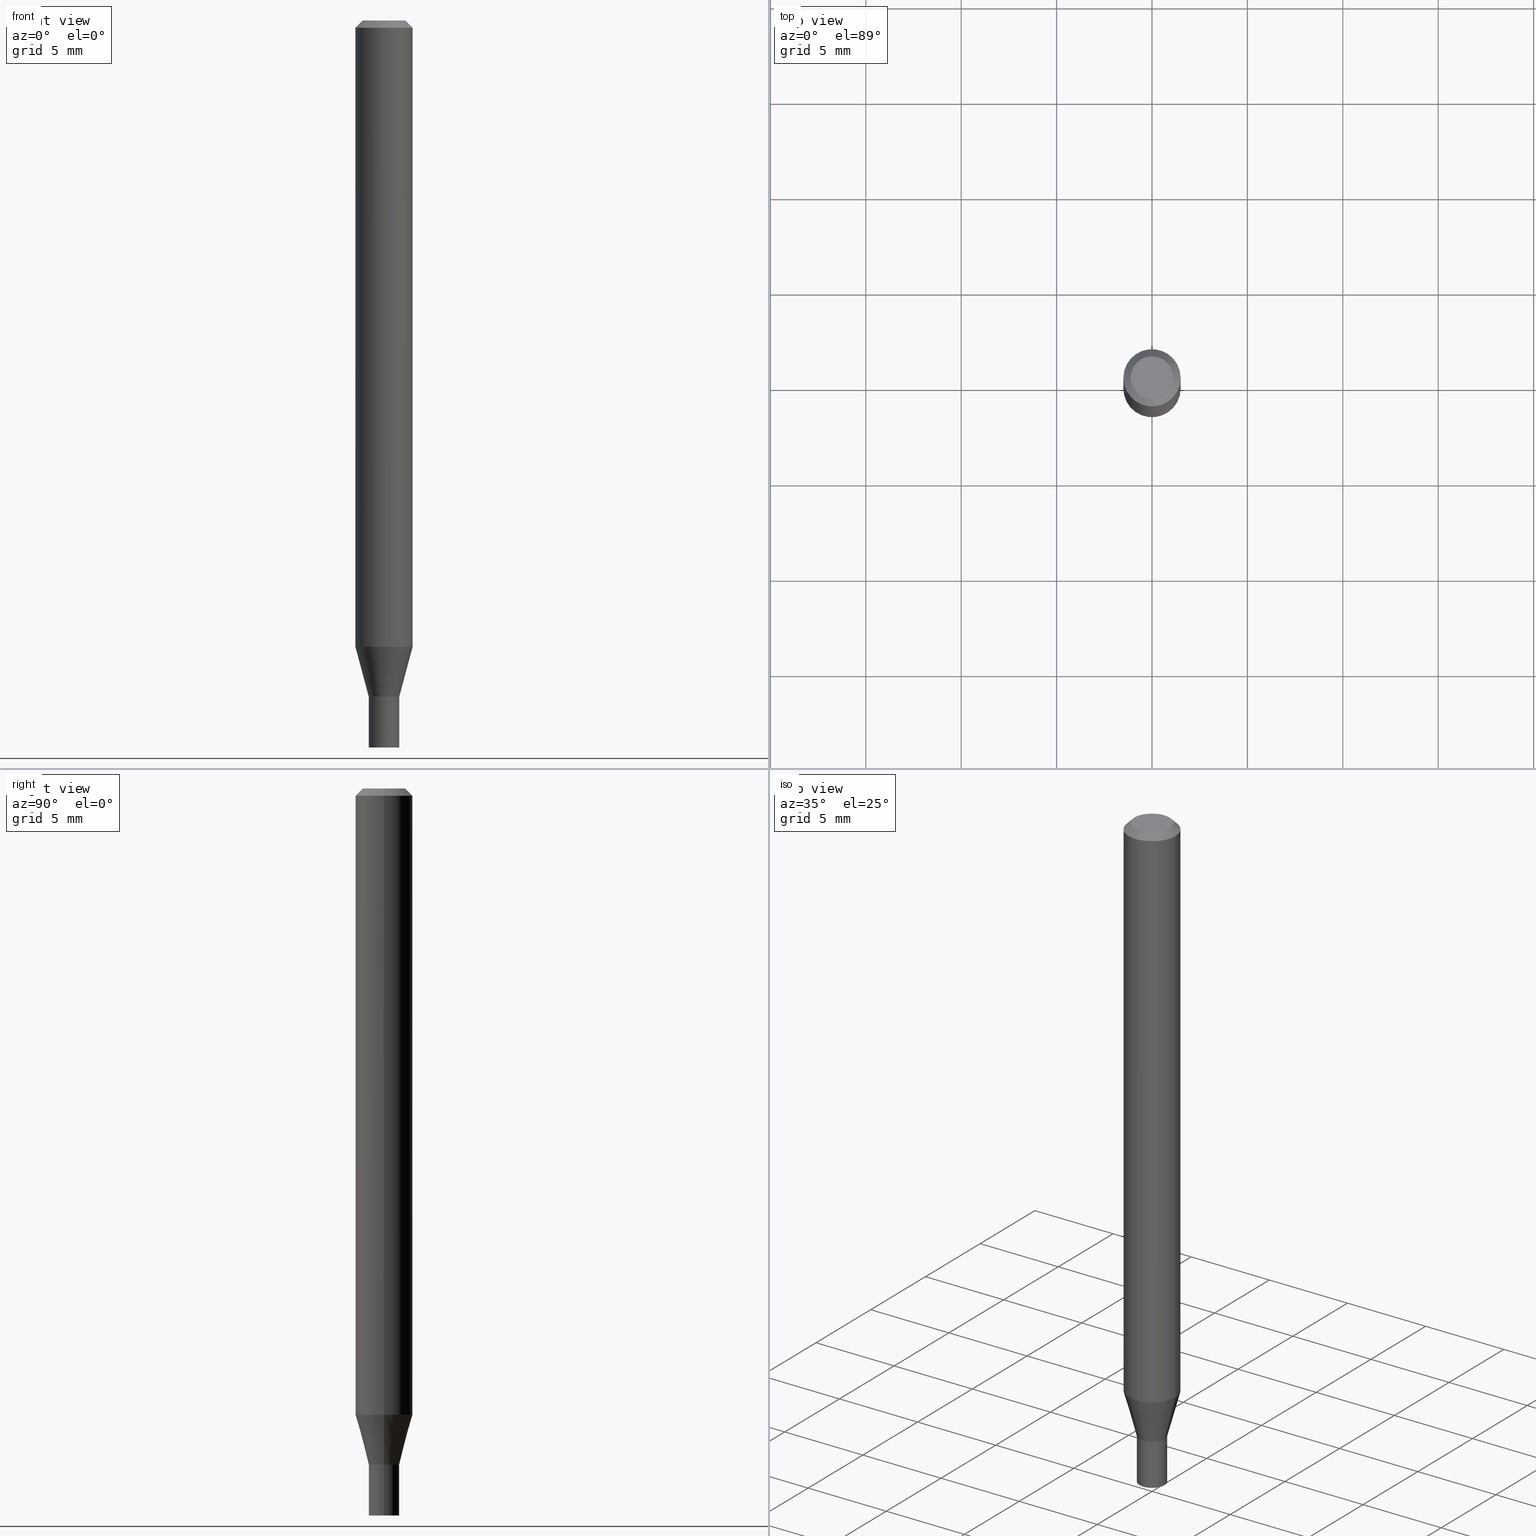
[diagram: canonical four-view strip — front | top / right | iso, engineering-drawing reading convention]
A machine part, canonical four-view strip (front | top / right | iso — engineering-drawing reading convention). The complete STEP part file that produces these views, byte-faithful:
ISO-10303-21;
HEADER;
FILE_DESCRIPTION (( 'STEP AP203' ),
    '1' );
FILE_NAME ('09286.STEP',
    '2024-03-14T18:20:42',
    ( '' ),
    ( '' ),
    'SwSTEP 2.0',
    'SolidWorks 2023',
    '' );
FILE_SCHEMA (( 'CONFIG_CONTROL_DESIGN' ));
ENDSEC;

DATA;
#1 = MANIFOLD_SOLID_BREP ( 'Body-Move/Copy2[1]', #327 ) ;
#2 = DIRECTION ( 'NONE',  ( -1.000000000000000000, 6.982962677686266711E-15, 0.000000000000000000 ) ) ;
#3 = CYLINDRICAL_SURFACE ( 'NONE', #389, 0.05904999999999999832 ) ;
#4 = CYLINDRICAL_SURFACE ( 'NONE', #10, 0.03149999999999992389 ) ;
#5 = DIRECTION ( 'NONE',  ( 1.000000000000000000, -6.982962677686265922E-15, 4.876176775795935793E-29 ) ) ;
#6 = APPLICATION_PROTOCOL_DEFINITION ( 'international standard', 'config_control_design', 1994, #75 ) ;
#7 = DIRECTION ( 'NONE',  ( 1.000000000000000000, -6.982962677686266711E-15, 4.876176775795935793E-29 ) ) ;
#8 = ORIENTED_EDGE ( 'NONE', *, *, #326, .F. ) ;
#9 = DATE_AND_TIME ( #25, #53 ) ;
#10 = AXIS2_PLACEMENT_3D ( 'NONE', #294, #289, #7 ) ;
#11 = PRODUCT_DEFINITION_FORMATION_WITH_SPECIFIED_SOURCE ( 'ANY', '', #279, .NOT_KNOWN. ) ;
#12 = DIRECTION ( 'NONE',  ( 1.000000000000000000, -6.982962677686270655E-15, 0.000000000000000000 ) ) ;
#13 = ORIENTED_EDGE ( 'NONE', *, *, #429, .F. ) ;
#14 = EDGE_CURVE ( 'NONE', #269, #48, #185, .T. ) ;
#15 = MECHANICAL_CONTEXT ( 'NONE', #75, 'mechanical' ) ;
#16 = ORIENTED_EDGE ( 'NONE', *, *, #464, .F. ) ;
#17 = CARTESIAN_POINT ( 'NONE',  ( 0.03150000000000000022, -2.199633243471173876E-16, 1.535995684375719887E-30 ) ) ;
#18 = ADVANCED_FACE ( 'NONE', ( #425 ), #144, .T. ) ;
#19 = ADVANCED_FACE ( 'NONE', ( #38 ), #291, .T. ) ;
#20 = DIRECTION ( 'NONE',  ( 1.000000000000000000, -6.982962677686271444E-15, 0.000000000000000000 ) ) ;
#21 = ORIENTED_EDGE ( 'NONE', *, *, #371, .F. ) ;
#22 = DIRECTION ( 'NONE',  ( 1.000000000000000000, -6.982962677686265922E-15, 4.876176775795935793E-29 ) ) ;
#23 = PERSON_AND_ORGANIZATION_ROLE ( 'creator' ) ;
#24 = VERTEX_POINT ( 'NONE', #461 ) ;
#25 = CALENDAR_DATE ( 2024, 14, 3 ) ;
#26 = CARTESIAN_POINT ( 'NONE',  ( 0.000000000000000000, 0.000000000000000000, 0.000000000000000000 ) ) ;
#27 = CARTESIAN_POINT ( 'NONE',  ( -0.05904999999999999832, -4.092053854800706123E-15, -1.292182000251478113 ) ) ;
#28 = DIRECTION ( 'NONE',  ( 1.000000000000000000, -6.982962677686255667E-15, 0.000000000000000000 ) ) ;
#29 = ORIENTED_EDGE ( 'NONE', *, *, #154, .T. ) ;
#30 = DIRECTION ( 'NONE',  ( 0.2588190451025205729, 1.565188264969628081E-15, 0.9659258262890684232 ) ) ;
#31 = PERSON_AND_ORGANIZATION ( #446, #445 ) ;
#32 = DIRECTION ( 'NONE',  ( -2.445468806185136597E-29, 3.491481338843145583E-15, 1.000000000000000000 ) ) ;
#33 = DIRECTION ( 'NONE',  ( 0.7071067811861793118, -2.468850131078399925E-15, 0.7071067811869157227 ) ) ;
#34 = AXIS2_PLACEMENT_3D ( 'NONE', #309, #171, #448 ) ;
#35 = AXIS2_PLACEMENT_3D ( 'NONE', #379, #207, #28 ) ;
#36 = DATE_AND_TIME ( #173, #397 ) ;
#37 = ORIENTED_EDGE ( 'NONE', *, *, #199, .F. ) ;
#38 = FACE_OUTER_BOUND ( 'NONE', #82, .T. ) ;
#39 = ADVANCED_FACE ( 'NONE', ( #139 ), #287, .F. ) ;
#40 = CIRCLE ( 'NONE', #197, 0.03150000000000000022 ) ;
#41 = CIRCLE ( 'NONE', #205, 0.05904999999999999832 ) ;
#42 = CARTESIAN_POINT ( 'NONE',  ( 3.668203209277704895E-29, -5.237222008264718177E-15, -1.500000000000000222 ) ) ;
#43 = CARTESIAN_POINT ( 'NONE',  ( 3.437106407093210258E-29, -4.907277021744042169E-15, -1.405500000000000416 ) ) ;
#44 = CC_DESIGN_APPROVAL ( #465, ( #11 ) ) ;
#45 = CARTESIAN_POINT ( 'NONE',  ( 0.000000000000000000, 0.000000000000000000, 0.000000000000000000 ) ) ;
#46 = ORIENTED_EDGE ( 'NONE', *, *, #235, .T. ) ;
#47 = DIRECTION ( 'NONE',  ( -2.445468806185136597E-29, 3.491481338843145583E-15, 1.000000000000000000 ) ) ;
#48 = VERTEX_POINT ( 'NONE', #284 ) ;
#49 = VERTEX_POINT ( 'NONE', #27 ) ;
#50 = EDGE_CURVE ( 'NONE', #24, #416, #168, .T. ) ;
#51 = APPROVAL_STATUS ( 'not_yet_approved' ) ;
#52 = AXIS2_PLACEMENT_3D ( 'NONE', #42, #113, #228 ) ;
#53 = LOCAL_TIME ( 14, 20, 42.00000000000000000, #436 ) ;
#54 = ORIENTED_EDGE ( 'NONE', *, *, #329, .F. ) ;
#55 = ORIENTED_EDGE ( 'NONE', *, *, #81, .F. ) ;
#56 = DATE_AND_TIME ( #303, #292 ) ;
#57 = CC_DESIGN_PERSON_AND_ORGANIZATION_ASSIGNMENT ( #459, #68, ( #11 ) ) ;
#58 = ORIENTED_EDGE ( 'NONE', *, *, #90, .T. ) ;
#59 = DIRECTION ( 'NONE',  ( -1.000000000000000000, 6.982962677686266711E-15, 0.000000000000000000 ) ) ;
#60 = DATE_TIME_ROLE ( 'creation_date' ) ;
#61 = AXIS2_PLACEMENT_3D ( 'NONE', #345, #94, #65 ) ;
#62 = CIRCLE ( 'NONE', #306, 0.03150000000000020145 ) ;
#63 = DIRECTION ( 'NONE',  ( 1.000000000000000000, -6.982962677686272233E-15, 0.000000000000000000 ) ) ;
#64 = DIRECTION ( 'NONE',  ( 1.000000000000000000, -6.982962677686272233E-15, 0.000000000000000000 ) ) ;
#65 = DIRECTION ( 'NONE',  ( -1.000000000000000000, 6.982962677686265922E-15, -4.876176775795935793E-29 ) ) ;
#66 = PRODUCT_DEFINITION ( 'UNKNOWN', '', #11, #196 ) ;
#67 = SECURITY_CLASSIFICATION_LEVEL ( 'unclassified' ) ;
#68 = PERSON_AND_ORGANIZATION_ROLE ( 'creator' ) ;
#69 = VECTOR ( 'NONE', #187, 39.37007874015748143 ) ;
#70 = EDGE_LOOP ( 'NONE', ( #413, #126 ) ) ;
#71 = CARTESIAN_POINT ( 'NONE',  ( -0.04404999999999999888, 3.337856159934039069E-16, 2.531384086379445251E-16 ) ) ;
#72 = VECTOR ( 'NONE', #74, 39.37007874015748143 ) ;
#73 = DIRECTION ( 'NONE',  ( -0.2588190451025205729, 5.211531920934545520E-15, 0.9659258262890684232 ) ) ;
#74 = DIRECTION ( 'NONE',  ( -0.7071067811861793118, 7.493145998869024141E-15, 0.7071067811869157227 ) ) ;
#75 = APPLICATION_CONTEXT ( 'configuration controlled 3d designs of mechanical parts and assemblies' ) ;
#76 = CARTESIAN_POINT ( 'NONE',  ( -0.03150000000000020145, -4.646795505921755287E-15, -1.395000000000000018 ) ) ;
#77 = AXIS2_PLACEMENT_3D ( 'NONE', #209, #180, #422 ) ;
#78 = VECTOR ( 'NONE', #273, 39.37007874015748143 ) ;
#79 = VERTEX_POINT ( 'NONE', #280 ) ;
#80 = ADVANCED_FACE ( 'NONE', ( #453 ), #129, .T. ) ;
#81 = EDGE_CURVE ( 'NONE', #351, #200, #300, .T. ) ;
#82 = EDGE_LOOP ( 'NONE', ( #162, #403, #237, #315 ) ) ;
#83 = APPROVAL_ROLE ( '' ) ;
#84 = CARTESIAN_POINT ( 'NONE',  ( -6.190420819714450177E-45, 8.838280299038417497E-31, 2.531384086379467931E-16 ) ) ;
#85 = ORIENTED_EDGE ( 'NONE', *, *, #254, .F. ) ;
#86 = CARTESIAN_POINT ( 'NONE',  ( 3.668203209277705088E-31, -5.237222008264718399E-17, -0.01499999999999999944 ) ) ;
#87 = VECTOR ( 'NONE', #463, 39.37007874015748143 ) ;
#88 = APPROVAL_PERSON_ORGANIZATION ( #233, #391, #83 ) ;
#89 = VERTEX_POINT ( 'NONE', #210 ) ;
#90 = EDGE_CURVE ( 'NONE', #118, #435, #110, .T. ) ;
#91 = COORDINATED_UNIVERSAL_TIME_OFFSET ( 5, 0, .BEHIND. ) ;
#92 = EDGE_LOOP ( 'NONE', ( #311, #122 ) ) ;
#93 = FACE_OUTER_BOUND ( 'NONE', #219, .T. ) ;
#94 = DIRECTION ( 'NONE',  ( 2.438088387897960049E-29, -3.491481338843145188E-15, -1.000000000000000000 ) ) ;
#95 = CARTESIAN_POINT ( 'NONE',  ( -0.05904999999999999832, 3.599717260347268549E-16, -0.01499999999999999944 ) ) ;
#96 = AXIS2_PLACEMENT_3D ( 'NONE', #188, #362, #5 ) ;
#97 = VECTOR ( 'NONE', #388, 39.37007874015748143 ) ;
#98 = EDGE_LOOP ( 'NONE', ( #125, #375, #347, #55 ) ) ;
#99 = DIRECTION ( 'NONE',  ( 2.445468806185136597E-29, -3.491481338843145583E-15, -1.000000000000000000 ) ) ;
#100 = DATE_TIME_ROLE ( 'classification_date' ) ;
#101 =( LENGTH_UNIT ( ) NAMED_UNIT ( * ) SI_UNIT ( $, .METRE. ) );
#102 = LINE ( 'NONE', #177, #230 ) ;
#103 = ORIENTED_EDGE ( 'NONE', *, *, #14, .F. ) ;
#104 = AXIS2_PLACEMENT_3D ( 'NONE', #84, #236, #449 ) ;
#105 = CC_DESIGN_PERSON_AND_ORGANIZATION_ASSIGNMENT ( #350, #130, ( #231 ) ) ;
#106 = ADVANCED_FACE ( 'NONE', ( #352 ), #267, .T. ) ;
#107 = DIRECTION ( 'NONE',  ( 1.000000000000000000, -6.982962677686272233E-15, 0.000000000000000000 ) ) ;
#108 = DIRECTION ( 'NONE',  ( 1.000000000000000000, -6.982962677686255667E-15, 0.000000000000000000 ) ) ;
#109 = CARTESIAN_POINT ( 'NONE',  ( -0.03150000000000000022, -4.848428553239948021E-15, -1.405499999999999972 ) ) ;
#110 = CIRCLE ( 'NONE', #353, 0.03149999999999965328 ) ;
#111 = CIRCLE ( 'NONE', #145, 0.03099999999999999978 ) ;
#112 = EDGE_CURVE ( 'NONE', #49, #79, #134, .T. ) ;
#113 = DIRECTION ( 'NONE',  ( -2.445468806185136597E-29, 3.491481338843145583E-15, 1.000000000000000000 ) ) ;
#114 = DIRECTION ( 'NONE',  ( -2.445468806185136597E-29, 3.491481338843145583E-15, 1.000000000000000000 ) ) ;
#115 = CLOSED_SHELL ( 'NONE', ( #396, #260, #149, #364, #433, #19, #80, #106, #121, #296, #18, #243 ) ) ;
#116 =( GEOMETRIC_REPRESENTATION_CONTEXT ( 3 ) GLOBAL_UNCERTAINTY_ASSIGNED_CONTEXT ( ( #159 ) ) GLOBAL_UNIT_ASSIGNED_CONTEXT ( ( #320, #137, #264 ) ) REPRESENTATION_CONTEXT ( 'NONE', 'WORKASPACE' ) );
#117 = CARTESIAN_POINT ( 'NONE',  ( 0.03150000000000020145, -5.090579792033307144E-15, -1.395000000000000018 ) ) ;
#118 = VERTEX_POINT ( 'NONE', #361 ) ;
#119 = DIRECTION ( 'NONE',  ( 1.000000000000000000, -6.982962677686266711E-15, 4.876176775795935793E-29 ) ) ;
#120 = ORIENTED_EDGE ( 'NONE', *, *, #179, .F. ) ;
#121 = ADVANCED_FACE ( 'NONE', ( #426 ), #386, .F. ) ;
#122 = ORIENTED_EDGE ( 'NONE', *, *, #199, .T. ) ;
#123 = CARTESIAN_POINT ( 'NONE',  ( 3.159990773528904533E-29, -4.511629340267044828E-15, -1.292182000251478113 ) ) ;
#124 = AXIS2_PLACEMENT_3D ( 'NONE', #43, #148, #431 ) ;
#125 = ORIENTED_EDGE ( 'NONE', *, *, #390, .T. ) ;
#126 = ORIENTED_EDGE ( 'NONE', *, *, #154, .F. ) ;
#127 = DIRECTION ( 'NONE',  ( -1.000000000000000000, 6.982962677686265922E-15, -4.876176775795935793E-29 ) ) ;
#128 = DIRECTION ( 'NONE',  ( -2.445468806185136597E-29, 3.491481338843145583E-15, 1.000000000000000000 ) ) ;
#129 = CYLINDRICAL_SURFACE ( 'NONE', #138, 0.05904999999999999832 ) ;
#130 = PERSON_AND_ORGANIZATION_ROLE ( 'classification_officer' ) ;
#131 = CONICAL_SURFACE ( 'NONE', #124, 0.03099999999999999978, 0.7853981633969275844 ) ;
#132 = DIRECTION ( 'NONE',  ( -2.445468806185136597E-29, 3.491481338843145583E-15, 1.000000000000000000 ) ) ;
#133 = DIRECTION ( 'NONE',  ( -2.445468806185136597E-29, 3.491481338843145583E-15, 1.000000000000000000 ) ) ;
#134 = LINE ( 'NONE', #451, #69 ) ;
#135 = LINE ( 'NONE', #182, #405 ) ;
#136 = PERSON_AND_ORGANIZATION ( #446, #445 ) ;
#137 =( NAMED_UNIT ( * ) PLANE_ANGLE_UNIT ( ) SI_UNIT ( $, .RADIAN. ) );
#138 = AXIS2_PLACEMENT_3D ( 'NONE', #383, #252, #213 ) ;
#139 = FACE_OUTER_BOUND ( 'NONE', #92, .T. ) ;
#140 = CONICAL_SURFACE ( 'NONE', #299, 0.03150000000000020145, 0.2617993877991492413 ) ;
#141 = CARTESIAN_POINT ( 'NONE',  ( 3.437106407093210258E-29, -4.907277021744041380E-15, -1.405499999999999972 ) ) ;
#142 = FACE_OUTER_BOUND ( 'NONE', #157, .T. ) ;
#143 = FACE_OUTER_BOUND ( 'NONE', #270, .T. ) ;
#144 = CONICAL_SURFACE ( 'NONE', #365, 0.03099999999999999978, 0.7853981633969275844 ) ;
#145 = AXIS2_PLACEMENT_3D ( 'NONE', #161, #344, #12 ) ;
#146 = PLANE ( 'NONE',  #96 ) ;
#147 = CC_DESIGN_PERSON_AND_ORGANIZATION_ASSIGNMENT ( #242, #339, ( #279 ) ) ;
#148 = DIRECTION ( 'NONE',  ( -2.445468806185136597E-29, 3.491481338843145583E-15, 1.000000000000000000 ) ) ;
#149 = ADVANCED_FACE ( 'NONE', ( #93 ), #434, .T. ) ;
#150 = ORIENTED_EDGE ( 'NONE', *, *, #254, .T. ) ;
#151 = EDGE_CURVE ( 'NONE', #167, #79, #214, .T. ) ;
#152 = EDGE_LOOP ( 'NONE', ( #376, #195 ) ) ;
#153 = PERSON_AND_ORGANIZATION ( #446, #445 ) ;
#154 = EDGE_CURVE ( 'NONE', #89, #155, #40, .T. ) ;
#155 = VERTEX_POINT ( 'NONE', #423 ) ;
#156 = MANIFOLD_SOLID_BREP ( 'Body-Move/Copy2[2]', #115 ) ;
#157 = EDGE_LOOP ( 'NONE', ( #13, #58, #336, #286 ) ) ;
#158 = DIRECTION ( 'NONE',  ( -2.445468806185136597E-29, 3.491481338843145583E-15, 1.000000000000000000 ) ) ;
#159 = UNCERTAINTY_MEASURE_WITH_UNIT (LENGTH_MEASURE( 1.000000000000000082E-05 ), #320, 'distance_accuracy_value', 'NONE');
#160 = APPROVAL_STATUS ( 'not_yet_approved' ) ;
#161 = CARTESIAN_POINT ( 'NONE',  ( 3.437106407093210258E-29, -4.907277021744042169E-15, -1.405500000000000416 ) ) ;
#162 = ORIENTED_EDGE ( 'NONE', *, *, #263, .F. ) ;
#163 = AXIS2_PLACEMENT_3D ( 'NONE', #321, #244, #63 ) ;
#164 = CARTESIAN_POINT ( 'NONE',  ( 0.000000000000000000, 0.000000000000000000, 0.000000000000000000 ) ) ;
#165 = APPROVAL_PERSON_ORGANIZATION ( #31, #410, #258 ) ;
#166 = DIRECTION ( 'NONE',  ( -2.445468806185136597E-29, 3.491481338843145583E-15, 1.000000000000000000 ) ) ;
#167 = VERTEX_POINT ( 'NONE', #71 ) ;
#168 = LINE ( 'NONE', #456, #204 ) ;
#169 = DIRECTION ( 'NONE',  ( 1.000000000000000000, -6.982962677686271444E-15, 0.000000000000000000 ) ) ;
#170 = ORIENTED_EDGE ( 'NONE', *, *, #14, .T. ) ;
#171 = DIRECTION ( 'NONE',  ( -2.445468806185136597E-29, 3.491481338843145583E-15, 1.000000000000000000 ) ) ;
#172 = CARTESIAN_POINT ( 'NONE',  ( 3.668203209277705088E-31, -5.237222008264718399E-17, -0.01499999999999999944 ) ) ;
#173 = CALENDAR_DATE ( 2024, 14, 3 ) ;
#174 = AXIS2_PLACEMENT_3D ( 'NONE', #191, #331, #22 ) ;
#175 = CARTESIAN_POINT ( 'NONE',  ( -0.03149999999999992389, 2.238209617644310178E-16, -1.549464553430291473E-30 ) ) ;
#176 = AXIS2_PLACEMENT_3D ( 'NONE', #229, #47, #193 ) ;
#177 = CARTESIAN_POINT ( 'NONE',  ( 0.03099999999999999978, -5.123748864752316500E-15, -1.405500000000000416 ) ) ;
#178 = PERSON_AND_ORGANIZATION_ROLE ( 'design_supplier' ) ;
#179 = EDGE_CURVE ( 'NONE', #48, #435, #102, .T. ) ;
#180 = DIRECTION ( 'NONE',  ( -2.445468806185136597E-29, 3.491481338843145583E-15, 1.000000000000000000 ) ) ;
#181 = ADVANCED_BREP_SHAPE_REPRESENTATION ( '09286', ( #1, #156, #381 ), #116 ) ;
#182 = CARTESIAN_POINT ( 'NONE',  ( 0.05904999999999999832, -4.123439461173740327E-16, 2.879382386107500220E-30 ) ) ;
#183 = ORIENTED_EDGE ( 'NONE', *, *, #390, .F. ) ;
#184 = DIRECTION ( 'NONE',  ( 1.000000000000000000, -6.982962677686265922E-15, 4.888540261209747396E-29 ) ) ;
#185 = CIRCLE ( 'NONE', #77, 0.03099999999999999978 ) ;
#186 = AXIS2_PLACEMENT_3D ( 'NONE', #201, #439, #20 ) ;
#187 = DIRECTION ( 'NONE',  ( -2.445468806185136877E-29, 3.491481338843145188E-15, 1.000000000000000000 ) ) ;
#188 = CARTESIAN_POINT ( 'NONE',  ( 3.576687321579069994E-29, -5.368277968210015545E-15, -1.500000000000000222 ) ) ;
#189 = CYLINDRICAL_SURFACE ( 'NONE', #224, 0.03150000000000000022 ) ;
#190 = CIRCLE ( 'NONE', #35, 0.03150000000000000022 ) ;
#191 = CARTESIAN_POINT ( 'NONE',  ( 3.437106407093210258E-29, -4.907277021744041380E-15, -1.405499999999999972 ) ) ;
#192 = EDGE_CURVE ( 'NONE', #89, #234, #223, .T. ) ;
#193 = DIRECTION ( 'NONE',  ( 1.000000000000000000, -6.982962677686266711E-15, 0.000000000000000000 ) ) ;
#194 = ORIENTED_EDGE ( 'NONE', *, *, #192, .T. ) ;
#195 = ORIENTED_EDGE ( 'NONE', *, *, #411, .T. ) ;
#196 = DESIGN_CONTEXT ( 'detailed design', #332, 'design' ) ;
#197 = AXIS2_PLACEMENT_3D ( 'NONE', #313, #285, #108 ) ;
#198 = APPROVAL_PERSON_ORGANIZATION ( #153, #465, #211 ) ;
#199 = EDGE_CURVE ( 'NONE', #234, #305, #297, .T. ) ;
#200 = VERTEX_POINT ( 'NONE', #265 ) ;
#201 = CARTESIAN_POINT ( 'NONE',  ( 3.435883672690117457E-29, -4.905531281074619877E-15, -1.405000000000000249 ) ) ;
#202 = ORIENTED_EDGE ( 'NONE', *, *, #384, .T. ) ;
#203 = ORIENTED_EDGE ( 'NONE', *, *, #314, .T. ) ;
#204 = VECTOR ( 'NONE', #249, 39.37007874015748143 ) ;
#205 = AXIS2_PLACEMENT_3D ( 'NONE', #86, #158, #312 ) ;
#206 = ORIENTED_EDGE ( 'NONE', *, *, #112, .F. ) ;
#207 = DIRECTION ( 'NONE',  ( -2.445468806185136597E-29, 3.491481338843145583E-15, 1.000000000000000000 ) ) ;
#208 = PRODUCT_DEFINITION_SHAPE ( 'NONE', 'NONE',  #66 ) ;
#209 = CARTESIAN_POINT ( 'NONE',  ( 3.437106407093210258E-29, -4.907277021744042169E-15, -1.405500000000000416 ) ) ;
#210 = CARTESIAN_POINT ( 'NONE',  ( -0.03150000000000000022, -4.848428553239948021E-15, -1.500000000000000222 ) ) ;
#211 = APPROVAL_ROLE ( '' ) ;
#212 = LINE ( 'NONE', #175, #283 ) ;
#213 = DIRECTION ( 'NONE',  ( 1.000000000000000000, -6.982962677686266711E-15, 4.876176775795936353E-29 ) ) ;
#214 = LINE ( 'NONE', #95, #247 ) ;
#215 = SHAPE_DEFINITION_REPRESENTATION ( #208, #181 ) ;
#216 = ADVANCED_FACE ( 'NONE', ( #290 ), #146, .F. ) ;
#217 = CIRCLE ( 'NONE', #318, 0.05904999999999999832 ) ;
#218 = CIRCLE ( 'NONE', #367, 0.03150000000000020145 ) ;
#219 = EDGE_LOOP ( 'NONE', ( #308, #343, #222, #241 ) ) ;
#220 = CALENDAR_DATE ( 2024, 14, 3 ) ;
#221 = CARTESIAN_POINT ( 'NONE',  ( 3.411428984628265351E-29, -4.870616467686188228E-15, -1.395000000000000018 ) ) ;
#222 = ORIENTED_EDGE ( 'NONE', *, *, #359, .T. ) ;
#223 = LINE ( 'NONE', #323, #87 ) ;
#224 = AXIS2_PLACEMENT_3D ( 'NONE', #45, #114, #401 ) ;
#225 = LOCAL_TIME ( 14, 20, 42.00000000000000000, #387 ) ;
#226 = CYLINDRICAL_SURFACE ( 'NONE', #412, 0.03150000000000000022 ) ;
#227 = FACE_OUTER_BOUND ( 'NONE', #447, .T. ) ;
#228 = DIRECTION ( 'NONE',  ( 1.000000000000000000, -6.982962677686255667E-15, 0.000000000000000000 ) ) ;
#229 = CARTESIAN_POINT ( 'NONE',  ( 3.668203209277705088E-31, -5.237222008264718399E-17, -0.01499999999999999944 ) ) ;
#230 = VECTOR ( 'NONE', #33, 39.37007874015748143 ) ;
#231 = SECURITY_CLASSIFICATION ( '', '', #67 ) ;
#232 = ORIENTED_EDGE ( 'NONE', *, *, #112, .T. ) ;
#233 = PERSON_AND_ORGANIZATION ( #446, #445 ) ;
#234 = VERTEX_POINT ( 'NONE', #109 ) ;
#235 = EDGE_CURVE ( 'NONE', #155, #89, #360, .T. ) ;
#236 = DIRECTION ( 'NONE',  ( -2.445468806185136597E-29, 3.491481338843145583E-15, 1.000000000000000000 ) ) ;
#237 = ORIENTED_EDGE ( 'NONE', *, *, #81, .T. ) ;
#238 = CC_DESIGN_PERSON_AND_ORGANIZATION_ASSIGNMENT ( #370, #23, ( #66 ) ) ;
#239 = APPLICATION_PROTOCOL_DEFINITION ( 'international standard', 'config_control_design', 1994, #332 ) ;
#240 = EDGE_LOOP ( 'NONE', ( #409, #407, #298, #369 ) ) ;
#241 = ORIENTED_EDGE ( 'NONE', *, *, #151, .F. ) ;
#242 = PERSON_AND_ORGANIZATION ( #446, #445 ) ;
#243 = ADVANCED_FACE ( 'NONE', ( #142 ), #4, .T. ) ;
#244 = DIRECTION ( 'NONE',  ( -2.445468806185136597E-29, 3.491481338843145583E-15, 1.000000000000000000 ) ) ;
#245 = DIRECTION ( 'NONE',  ( -0.7071067811865415775, 2.468850131082194741E-15, -0.7071067811865534569 ) ) ;
#246 = ADVANCED_FACE ( 'NONE', ( #143 ), #189, .T. ) ;
#247 = VECTOR ( 'NONE', #245, 39.37007874015748143 ) ;
#248 = CIRCLE ( 'NONE', #176, 0.05904999999999999832 ) ;
#249 = DIRECTION ( 'NONE',  ( 0.7071067811865415775, -7.319954787623235535E-15, -0.7071067811865534569 ) ) ;
#250 = DIRECTION ( 'NONE',  ( -2.445468806185136597E-29, 3.491481338843145583E-15, 1.000000000000000000 ) ) ;
#251 = CARTESIAN_POINT ( 'NONE',  ( 0.05904999999999999832, -4.647161662000212105E-16, -0.01499999999999999944 ) ) ;
#252 = DIRECTION ( 'NONE',  ( -2.445468806185136597E-29, 3.491481338843145583E-15, 1.000000000000000000 ) ) ;
#253 = CARTESIAN_POINT ( 'NONE',  ( 0.03149999999999992389, -2.199633243471168699E-16, 1.535995684375716033E-30 ) ) ;
#254 = EDGE_CURVE ( 'NONE', #269, #118, #427, .T. ) ;
#255 = DATE_AND_TIME ( #385, #225 ) ;
#256 = CIRCLE ( 'NONE', #462, 0.04404999999999999888 ) ;
#257 = CARTESIAN_POINT ( 'NONE',  ( 3.411428984628265351E-29, -4.870616467686188228E-15, -1.395000000000000018 ) ) ;
#258 = APPROVAL_ROLE ( '' ) ;
#259 = LINE ( 'NONE', #253, #97 ) ;
#260 = ADVANCED_FACE ( 'NONE', ( #398 ), #131, .T. ) ;
#261 = CARTESIAN_POINT ( 'NONE',  ( -0.03099999999999999978, -4.687008773658410916E-15, -1.405500000000000416 ) ) ;
#262 = CC_DESIGN_SECURITY_CLASSIFICATION ( #231, ( #11 ) ) ;
#263 = EDGE_CURVE ( 'NONE', #340, #49, #325, .T. ) ;
#264 =( NAMED_UNIT ( * ) SI_UNIT ( $, .STERADIAN. ) SOLID_ANGLE_UNIT ( ) );
#265 = CARTESIAN_POINT ( 'NONE',  ( 0.05904999999999999832, -4.923973286384418959E-15, -1.292182000251478113 ) ) ;
#266 = FACE_OUTER_BOUND ( 'NONE', #295, .T. ) ;
#267 = CONICAL_SURFACE ( 'NONE', #444, 0.05904999999999999832, 0.7853981633974399523 ) ;
#268 = AXIS2_PLACEMENT_3D ( 'NONE', #26, #166, #119 ) ;
#269 = VERTEX_POINT ( 'NONE', #400 ) ;
#270 = EDGE_LOOP ( 'NONE', ( #358, #29, #301, #37 ) ) ;
#271 = DIRECTION ( 'NONE',  ( 1.000000000000000000, -6.982962677686273021E-15, 0.000000000000000000 ) ) ;
#272 = ORIENTED_EDGE ( 'NONE', *, *, #384, .F. ) ;
#273 = DIRECTION ( 'NONE',  ( -2.445468806185136877E-29, 3.491481338843145188E-15, 1.000000000000000000 ) ) ;
#274 = DIRECTION ( 'NONE',  ( 1.000000000000000000, -6.982962677686272233E-15, 0.000000000000000000 ) ) ;
#275 = ORIENTED_EDGE ( 'NONE', *, *, #442, .T. ) ;
#276 = DIRECTION ( 'NONE',  ( -2.445468806185136597E-29, 3.491481338843145583E-15, 1.000000000000000000 ) ) ;
#277 = ORIENTED_EDGE ( 'NONE', *, *, #322, .F. ) ;
#278 = ADVANCED_FACE ( 'NONE', ( #227 ), #226, .T. ) ;
#279 = PRODUCT ( '09286', '09286', '', ( #15 ) ) ;
#280 = CARTESIAN_POINT ( 'NONE',  ( -0.05904999999999999832, -1.862425294708507052E-15, -0.01499999999999999944 ) ) ;
#281 = CARTESIAN_POINT ( 'NONE',  ( 3.435883672690117457E-29, -4.905531281074619877E-15, -1.405000000000000249 ) ) ;
#282 = DATE_AND_TIME ( #220, #355 ) ;
#283 = VECTOR ( 'NONE', #394, 39.37007874015748143 ) ;
#284 = CARTESIAN_POINT ( 'NONE',  ( 0.03099999999999999978, -5.123748864752316500E-15, -1.405500000000000416 ) ) ;
#285 = DIRECTION ( 'NONE',  ( -2.445468806185136597E-29, 3.491481338843145583E-15, 1.000000000000000000 ) ) ;
#286 = ORIENTED_EDGE ( 'NONE', *, *, #466, .F. ) ;
#287 = PLANE ( 'NONE',  #61 ) ;
#288 = DIRECTION ( 'NONE',  ( 1.000000000000000000, -6.982962677686255667E-15, 0.000000000000000000 ) ) ;
#289 = DIRECTION ( 'NONE',  ( -2.445468806185136597E-29, 3.491481338843145583E-15, 1.000000000000000000 ) ) ;
#290 = FACE_OUTER_BOUND ( 'NONE', #70, .T. ) ;
#291 = CONICAL_SURFACE ( 'NONE', #163, 0.03150000000000020145, 0.2617993877991492413 ) ;
#292 = LOCAL_TIME ( 14, 20, 42.00000000000000000, #91 ) ;
#293 = PRODUCT_RELATED_PRODUCT_CATEGORY ( 'detail', '', ( #279 ) ) ;
#294 = CARTESIAN_POINT ( 'NONE',  ( 0.000000000000000000, 0.000000000000000000, 0.000000000000000000 ) ) ;
#295 = EDGE_LOOP ( 'NONE', ( #272, #103 ) ) ;
#296 = ADVANCED_FACE ( 'NONE', ( #266 ), #366, .F. ) ;
#297 = CIRCLE ( 'NONE', #419, 0.03150000000000000022 ) ;
#298 = ORIENTED_EDGE ( 'NONE', *, *, #151, .T. ) ;
#299 = AXIS2_PLACEMENT_3D ( 'NONE', #257, #32, #107 ) ;
#300 = LINE ( 'NONE', #346, #457 ) ;
#301 = ORIENTED_EDGE ( 'NONE', *, *, #329, .T. ) ;
#302 = EDGE_LOOP ( 'NONE', ( #356, #378, #183, #16 ) ) ;
#303 = CALENDAR_DATE ( 2024, 14, 3 ) ;
#304 = DIRECTION ( 'NONE',  ( -2.445468806185136597E-29, 3.491481338843145583E-15, 1.000000000000000000 ) ) ;
#305 = VERTEX_POINT ( 'NONE', #377 ) ;
#306 = AXIS2_PLACEMENT_3D ( 'NONE', #221, #132, #64 ) ;
#307 = DIRECTION ( 'NONE',  ( -2.445468806185136597E-29, 3.491481338843145583E-15, 1.000000000000000000 ) ) ;
#308 = ORIENTED_EDGE ( 'NONE', *, *, #411, .F. ) ;
#309 = CARTESIAN_POINT ( 'NONE',  ( 3.159990773528904533E-29, -4.511629340267044828E-15, -1.292182000251478113 ) ) ;
#310 = FACE_OUTER_BOUND ( 'NONE', #302, .T. ) ;
#311 = ORIENTED_EDGE ( 'NONE', *, *, #322, .T. ) ;
#312 = DIRECTION ( 'NONE',  ( 1.000000000000000000, -6.982962677686266711E-15, 0.000000000000000000 ) ) ;
#313 = CARTESIAN_POINT ( 'NONE',  ( 3.668203209277704895E-29, -5.237222008264718177E-15, -1.500000000000000222 ) ) ;
#314 = EDGE_CURVE ( 'NONE', #200, #49, #430, .T. ) ;
#315 = ORIENTED_EDGE ( 'NONE', *, *, #317, .F. ) ;
#316 = DIRECTION ( 'NONE',  ( 2.445468806185136597E-29, -3.491481338843145583E-15, -1.000000000000000000 ) ) ;
#317 = EDGE_CURVE ( 'NONE', #49, #200, #217, .T. ) ;
#318 = AXIS2_PLACEMENT_3D ( 'NONE', #123, #348, #271 ) ;
#319 = COORDINATED_UNIVERSAL_TIME_OFFSET ( 5, 0, .BEHIND. ) ;
#320 =( CONVERSION_BASED_UNIT ( 'INCH', #357 ) LENGTH_UNIT ( ) NAMED_UNIT ( #402 ) );
#321 = CARTESIAN_POINT ( 'NONE',  ( 3.411428984628265351E-29, -4.870616467686188228E-15, -1.395000000000000018 ) ) ;
#322 = EDGE_CURVE ( 'NONE', #305, #234, #190, .T. ) ;
#323 = CARTESIAN_POINT ( 'NONE',  ( -0.03150000000000000022, 2.238209617644315601E-16, -1.549464553430295327E-30 ) ) ;
#324 = CARTESIAN_POINT ( 'NONE',  ( 3.075995059520799729E-16, 0.04404999999999999888, -2.723054865706716614E-17 ) ) ;
#325 = LINE ( 'NONE', #76, #395 ) ;
#326 = EDGE_CURVE ( 'NONE', #79, #416, #41, .T. ) ;
#327 = CLOSED_SHELL ( 'NONE', ( #278, #216, #246, #39 ) ) ;
#328 = DIRECTION ( 'NONE',  ( -2.445468806185136597E-29, 3.491481338843145583E-15, 1.000000000000000000 ) ) ;
#329 = EDGE_CURVE ( 'NONE', #155, #305, #454, .T. ) ;
#330 = AXIS2_PLACEMENT_3D ( 'NONE', #349, #316, #2 ) ;
#331 = DIRECTION ( 'NONE',  ( -2.438088387897960049E-29, 3.491481338843145188E-15, 1.000000000000000000 ) ) ;
#332 = APPLICATION_CONTEXT ( 'configuration controlled 3d designs of mechanical parts and assemblies' ) ;
#333 = FACE_OUTER_BOUND ( 'NONE', #334, .T. ) ;
#334 = EDGE_LOOP ( 'NONE', ( #203, #232, #372, #338 ) ) ;
#335 = DIRECTION ( 'NONE',  ( 1.000000000000000000, -6.982962677686266711E-15, 4.876176775795936353E-29 ) ) ;
#336 = ORIENTED_EDGE ( 'NONE', *, *, #464, .T. ) ;
#337 = CIRCLE ( 'NONE', #186, 0.03149999999999965328 ) ;
#338 = ORIENTED_EDGE ( 'NONE', *, *, #442, .F. ) ;
#339 = PERSON_AND_ORGANIZATION_ROLE ( 'design_owner' ) ;
#340 = VERTEX_POINT ( 'NONE', #414 ) ;
#341 = APPROVAL_DATE_TIME ( #56, #391 ) ;
#342 = CARTESIAN_POINT ( 'NONE',  ( 3.411428984628265351E-29, -4.870616467686188228E-15, -1.395000000000000018 ) ) ;
#343 = ORIENTED_EDGE ( 'NONE', *, *, #50, .T. ) ;
#344 = DIRECTION ( 'NONE',  ( -2.445468806185136597E-29, 3.491481338843145583E-15, 1.000000000000000000 ) ) ;
#345 = CARTESIAN_POINT ( 'NONE',  ( 2.199633243471517523E-16, 0.03149999999999509442, -1.405499999999999972 ) ) ;
#346 = CARTESIAN_POINT ( 'NONE',  ( 0.03150000000000020145, -5.090579792033307144E-15, -1.395000000000000018 ) ) ;
#347 = ORIENTED_EDGE ( 'NONE', *, *, #314, .F. ) ;
#348 = DIRECTION ( 'NONE',  ( -2.445468806185136597E-29, 3.491481338843145583E-15, 1.000000000000000000 ) ) ;
#349 = CARTESIAN_POINT ( 'NONE',  ( 3.668203209277705088E-31, -5.237222008264718399E-17, -0.01499999999999999944 ) ) ;
#350 = PERSON_AND_ORGANIZATION ( #446, #445 ) ;
#351 = VERTEX_POINT ( 'NONE', #117 ) ;
#352 = FACE_OUTER_BOUND ( 'NONE', #240, .T. ) ;
#353 = AXIS2_PLACEMENT_3D ( 'NONE', #281, #250, #169 ) ;
#354 = APPROVAL_DATE_TIME ( #255, #465 ) ;
#355 = LOCAL_TIME ( 14, 20, 42.00000000000000000, #460 ) ;
#356 = ORIENTED_EDGE ( 'NONE', *, *, #371, .T. ) ;
#357 = LENGTH_MEASURE_WITH_UNIT ( LENGTH_MEASURE( 0.02539999999999999897 ), #101 );
#358 = ORIENTED_EDGE ( 'NONE', *, *, #192, .F. ) ;
#359 = EDGE_CURVE ( 'NONE', #416, #79, #248, .T. ) ;
#360 = CIRCLE ( 'NONE', #52, 0.03150000000000000022 ) ;
#361 = CARTESIAN_POINT ( 'NONE',  ( -0.03149999999999965328, -4.681710319310190881E-15, -1.405000000000000249 ) ) ;
#362 = DIRECTION ( 'NONE',  ( -2.438088387897960049E-29, 3.491481338843145188E-15, 1.000000000000000000 ) ) ;
#363 = CARTESIAN_POINT ( 'NONE',  ( 0.000000000000000000, 0.000000000000000000, 0.000000000000000000 ) ) ;
#364 = ADVANCED_FACE ( 'NONE', ( #333 ), #3, .T. ) ;
#365 = AXIS2_PLACEMENT_3D ( 'NONE', #393, #133, #418 ) ;
#366 = PLANE ( 'NONE',  #174 ) ;
#367 = AXIS2_PLACEMENT_3D ( 'NONE', #342, #304, #274 ) ;
#368 = ORIENTED_EDGE ( 'NONE', *, *, #179, .T. ) ;
#369 = ORIENTED_EDGE ( 'NONE', *, *, #326, .T. ) ;
#370 = PERSON_AND_ORGANIZATION ( #446, #445 ) ;
#371 = EDGE_CURVE ( 'NONE', #435, #118, #337, .T. ) ;
#372 = ORIENTED_EDGE ( 'NONE', *, *, #359, .F. ) ;
#373 = CIRCLE ( 'NONE', #104, 0.04404999999999999888 ) ;
#374 = CC_DESIGN_PERSON_AND_ORGANIZATION_ASSIGNMENT ( #136, #178, ( #11 ) ) ;
#375 = ORIENTED_EDGE ( 'NONE', *, *, #263, .T. ) ;
#376 = ORIENTED_EDGE ( 'NONE', *, *, #408, .T. ) ;
#377 = CARTESIAN_POINT ( 'NONE',  ( 0.03150000000000000022, -5.127240346091158719E-15, -1.405499999999999972 ) ) ;
#378 = ORIENTED_EDGE ( 'NONE', *, *, #429, .T. ) ;
#379 = CARTESIAN_POINT ( 'NONE',  ( 3.437106407093210258E-29, -4.907277021744041380E-15, -1.405499999999999972 ) ) ;
#380 = DIRECTION ( 'NONE',  ( 2.438088387897960049E-29, -3.491481338843145188E-15, -1.000000000000000000 ) ) ;
#381 = AXIS2_PLACEMENT_3D ( 'NONE', #164, #415, #443 ) ;
#382 = APPROVAL_STATUS ( 'not_yet_approved' ) ;
#383 = CARTESIAN_POINT ( 'NONE',  ( 0.000000000000000000, 0.000000000000000000, 0.000000000000000000 ) ) ;
#384 = EDGE_CURVE ( 'NONE', #48, #269, #111, .T. ) ;
#385 = CALENDAR_DATE ( 2024, 14, 3 ) ;
#386 = PLANE ( 'NONE',  #404 ) ;
#387 = COORDINATED_UNIVERSAL_TIME_OFFSET ( 5, 0, .BEHIND. ) ;
#388 = DIRECTION ( 'NONE',  ( -2.445468806185136877E-29, 3.491481338843145188E-15, 1.000000000000000000 ) ) ;
#389 = AXIS2_PLACEMENT_3D ( 'NONE', #399, #307, #335 ) ;
#390 = EDGE_CURVE ( 'NONE', #351, #340, #218, .T. ) ;
#391 = APPROVAL ( #160, 'UNSPECIFIED' ) ;
#392 = CARTESIAN_POINT ( 'NONE',  ( 0.03149999999999965328, -5.125494605421735637E-15, -1.405000000000000249 ) ) ;
#393 = CARTESIAN_POINT ( 'NONE',  ( 3.437106407093210258E-29, -4.907277021744042169E-15, -1.405500000000000416 ) ) ;
#394 = DIRECTION ( 'NONE',  ( -2.445468806185136877E-29, 3.491481338843145188E-15, 1.000000000000000000 ) ) ;
#395 = VECTOR ( 'NONE', #73, 39.37007874015748143 ) ;
#396 = ADVANCED_FACE ( 'NONE', ( #310 ), #437, .T. ) ;
#397 = LOCAL_TIME ( 14, 20, 42.00000000000000000, #319 ) ;
#398 = FACE_OUTER_BOUND ( 'NONE', #441, .T. ) ;
#399 = CARTESIAN_POINT ( 'NONE',  ( 0.000000000000000000, 0.000000000000000000, 0.000000000000000000 ) ) ;
#400 = CARTESIAN_POINT ( 'NONE',  ( -0.03099999999999999978, -4.684359546484301293E-15, -1.405500000000000416 ) ) ;
#401 = DIRECTION ( 'NONE',  ( 1.000000000000000000, -6.982962677686265922E-15, 4.876176775795936353E-29 ) ) ;
#402 = DIMENSIONAL_EXPONENTS ( 1.000000000000000000, 0.000000000000000000, 0.000000000000000000, 0.000000000000000000, 0.000000000000000000, 0.000000000000000000, 0.000000000000000000 ) ;
#403 = ORIENTED_EDGE ( 'NONE', *, *, #466, .T. ) ;
#404 = AXIS2_PLACEMENT_3D ( 'NONE', #324, #380, #127 ) ;
#405 = VECTOR ( 'NONE', #424, 39.37007874015748143 ) ;
#406 = EDGE_LOOP ( 'NONE', ( #85, #170, #368, #417 ) ) ;
#407 = ORIENTED_EDGE ( 'NONE', *, *, #408, .F. ) ;
#408 = EDGE_CURVE ( 'NONE', #167, #24, #373, .T. ) ;
#409 = ORIENTED_EDGE ( 'NONE', *, *, #50, .F. ) ;
#410 = APPROVAL ( #382, 'UNSPECIFIED' ) ;
#411 = EDGE_CURVE ( 'NONE', #24, #167, #256, .T. ) ;
#412 = AXIS2_PLACEMENT_3D ( 'NONE', #363, #328, #432 ) ;
#413 = ORIENTED_EDGE ( 'NONE', *, *, #235, .F. ) ;
#414 = CARTESIAN_POINT ( 'NONE',  ( -0.03150000000000020145, -4.369424680361230311E-15, -1.395000000000000018 ) ) ;
#415 = DIRECTION ( 'NONE',  ( 0.000000000000000000, 0.000000000000000000, 1.000000000000000000 ) ) ;
#416 = VERTEX_POINT ( 'NONE', #251 ) ;
#417 = ORIENTED_EDGE ( 'NONE', *, *, #90, .F. ) ;
#418 = DIRECTION ( 'NONE',  ( 1.000000000000000000, -6.982962677686270655E-15, 0.000000000000000000 ) ) ;
#419 = AXIS2_PLACEMENT_3D ( 'NONE', #141, #276, #288 ) ;
#420 = CC_DESIGN_APPROVAL ( #391, ( #66 ) ) ;
#421 = FACE_OUTER_BOUND ( 'NONE', #98, .T. ) ;
#422 = DIRECTION ( 'NONE',  ( 1.000000000000000000, -6.982962677686270655E-15, 0.000000000000000000 ) ) ;
#423 = CARTESIAN_POINT ( 'NONE',  ( 0.03150000000000000022, -5.457185332611835515E-15, -1.500000000000000222 ) ) ;
#424 = DIRECTION ( 'NONE',  ( -2.445468806185136877E-29, 3.491481338843145188E-15, 1.000000000000000000 ) ) ;
#425 = FACE_OUTER_BOUND ( 'NONE', #406, .T. ) ;
#426 = FACE_OUTER_BOUND ( 'NONE', #152, .T. ) ;
#427 = LINE ( 'NONE', #261, #72 ) ;
#428 = CC_DESIGN_DATE_AND_TIME_ASSIGNMENT ( #282, #100, ( #231 ) ) ;
#429 = EDGE_CURVE ( 'NONE', #118, #340, #212, .T. ) ;
#430 = CIRCLE ( 'NONE', #34, 0.05904999999999999832 ) ;
#431 = DIRECTION ( 'NONE',  ( 1.000000000000000000, -6.982962677686270655E-15, 0.000000000000000000 ) ) ;
#432 = DIRECTION ( 'NONE',  ( 1.000000000000000000, -6.982962677686265922E-15, 4.876176775795936353E-29 ) ) ;
#433 = ADVANCED_FACE ( 'NONE', ( #421 ), #140, .T. ) ;
#434 = CONICAL_SURFACE ( 'NONE', #330, 0.05904999999999999832, 0.7853981633974399523 ) ;
#435 = VERTEX_POINT ( 'NONE', #392 ) ;
#436 = COORDINATED_UNIVERSAL_TIME_OFFSET ( 5, 0, .BEHIND. ) ;
#437 = CYLINDRICAL_SURFACE ( 'NONE', #268, 0.03149999999999992389 ) ;
#438 = ORIENTED_EDGE ( 'NONE', *, *, #317, .T. ) ;
#439 = DIRECTION ( 'NONE',  ( -2.445468806185136597E-29, 3.491481338843145583E-15, 1.000000000000000000 ) ) ;
#440 = CC_DESIGN_DATE_AND_TIME_ASSIGNMENT ( #9, #60, ( #66 ) ) ;
#441 = EDGE_LOOP ( 'NONE', ( #202, #150, #21, #120 ) ) ;
#442 = EDGE_CURVE ( 'NONE', #200, #416, #135, .T. ) ;
#443 = DIRECTION ( 'NONE',  ( 1.000000000000000000, 0.000000000000000000, 0.000000000000000000 ) ) ;
#444 = AXIS2_PLACEMENT_3D ( 'NONE', #172, #99, #59 ) ;
#445 = ORGANIZATION ( 'UNSPECIFIED', 'UNSPECIFIED', '' ) ;
#446 = PERSON ( 'UNSPECIFIED', 'UNSPECIFIED', 'UNSPECIFIED', ('UNSPECIFIED'), ('UNSPECIFIED'), ('UNSPECIFIED') ) ;
#447 = EDGE_LOOP ( 'NONE', ( #46, #194, #277, #54 ) ) ;
#448 = DIRECTION ( 'NONE',  ( 1.000000000000000000, -6.982962677686273021E-15, 0.000000000000000000 ) ) ;
#449 = DIRECTION ( 'NONE',  ( 1.000000000000000000, -6.982962677686265922E-15, 4.888540261209747396E-29 ) ) ;
#450 = EDGE_LOOP ( 'NONE', ( #206, #438, #275, #8 ) ) ;
#451 = CARTESIAN_POINT ( 'NONE',  ( -0.05904999999999999832, 4.195754854663391478E-16, -2.904631170795521892E-30 ) ) ;
#452 = CARTESIAN_POINT ( 'NONE',  ( -6.190420819714450177E-45, 8.838280299038417497E-31, 2.531384086379467931E-16 ) ) ;
#453 = FACE_OUTER_BOUND ( 'NONE', #450, .T. ) ;
#454 = LINE ( 'NONE', #17, #78 ) ;
#455 = APPROVAL_DATE_TIME ( #36, #410 ) ;
#456 = CARTESIAN_POINT ( 'NONE',  ( 0.05904999999999999832, -4.574846268510561447E-16, -0.01499999999999999944 ) ) ;
#457 = VECTOR ( 'NONE', #30, 39.37007874015748143 ) ;
#458 = CC_DESIGN_APPROVAL ( #410, ( #231 ) ) ;
#459 = PERSON_AND_ORGANIZATION ( #446, #445 ) ;
#460 = COORDINATED_UNIVERSAL_TIME_OFFSET ( 5, 0, .BEHIND. ) ;
#461 = CARTESIAN_POINT ( 'NONE',  ( 0.04404999999999999888, -3.798447818264456135E-16, 2.531384086379491597E-16 ) ) ;
#462 = AXIS2_PLACEMENT_3D ( 'NONE', #452, #128, #184 ) ;
#463 = DIRECTION ( 'NONE',  ( -2.445468806185136877E-29, 3.491481338843145188E-15, 1.000000000000000000 ) ) ;
#464 = EDGE_CURVE ( 'NONE', #435, #351, #259, .T. ) ;
#465 = APPROVAL ( #51, 'UNSPECIFIED' ) ;
#466 = EDGE_CURVE ( 'NONE', #340, #351, #62, .T. ) ;
ENDSEC;
END-ISO-10303-21;
